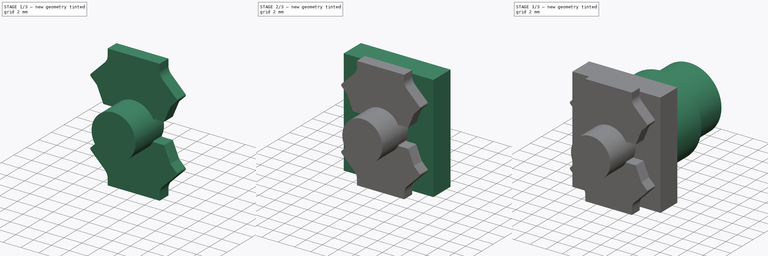
[diagram: build sequence overview — one tinted view per stage of 3, left to right]
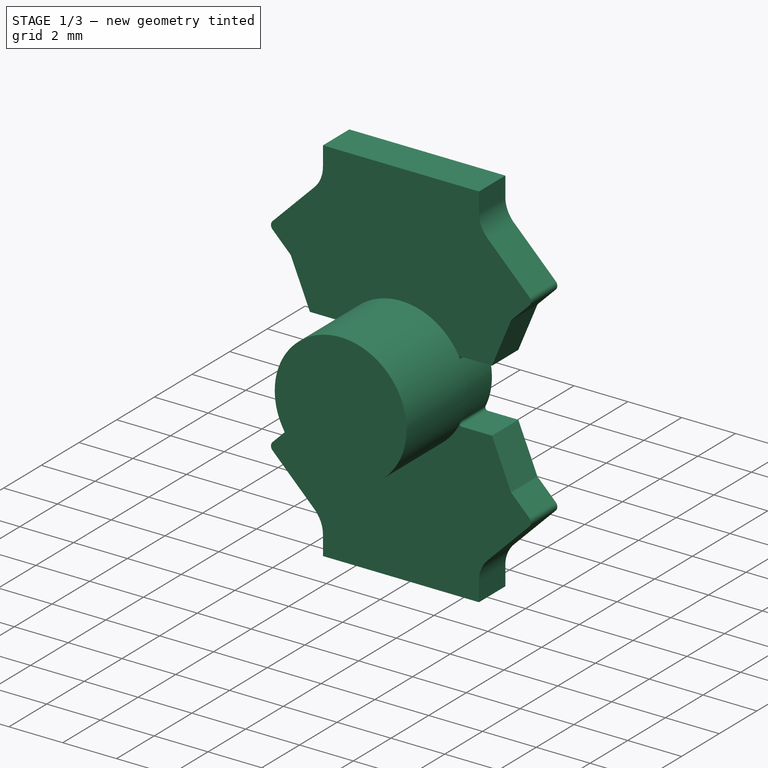
[diagram: stage 1 of 3 — iso view after this stage's code; geometry added in this stage tinted green]
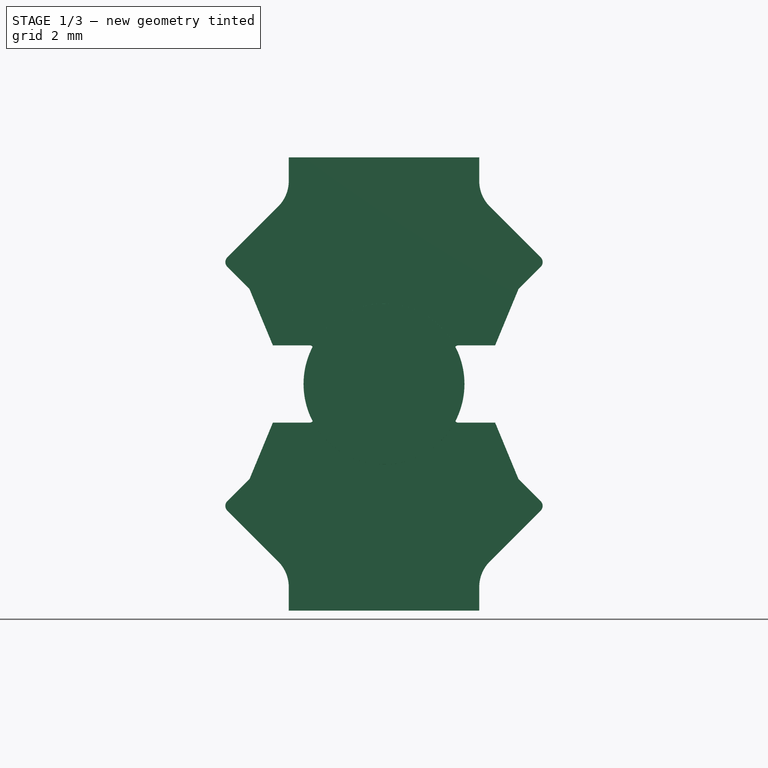
[diagram: stage 1 of 3 — front view after this stage's code; geometry added in this stage tinted green]
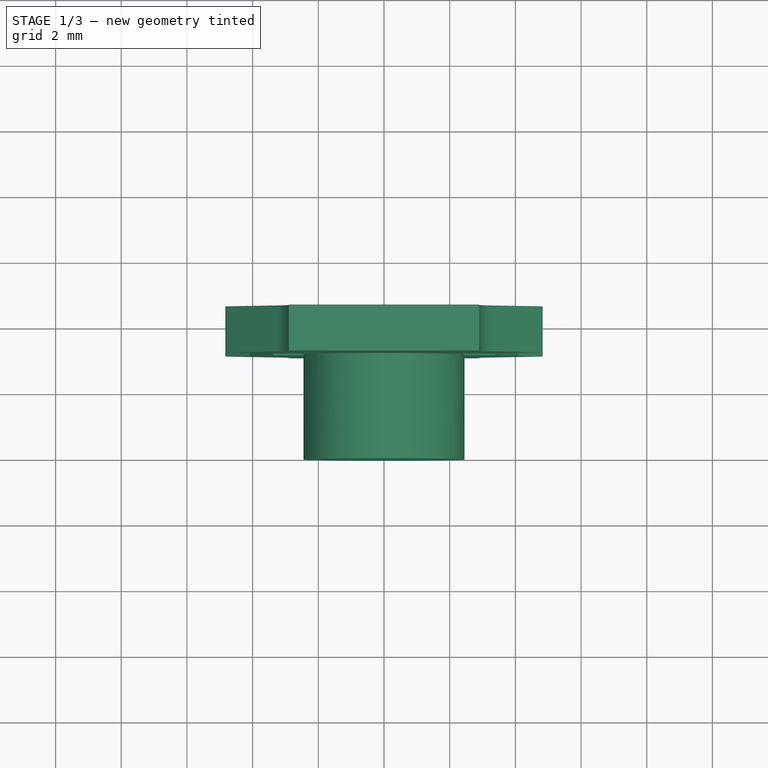
[diagram: stage 1 of 3 — top view after this stage's code; geometry added in this stage tinted green]
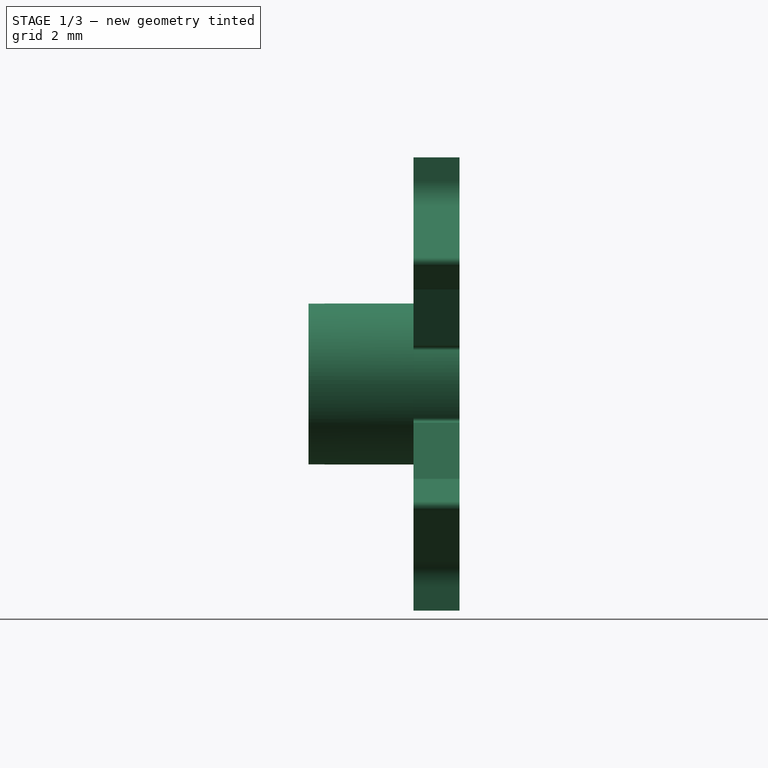
[diagram: stage 1 of 3 — right view after this stage's code; geometry added in this stage tinted green]
FCSTD DOCUMENT  (FreeCAD 1.0R39285 (Git))
Label: Coilformer_Holder
License: All rights reserved
LicenseURL: https://en.wikipedia.org/wiki/All_rights_reserved
objects: Sketcher::SketchObject×5, PartDesign::Pad×5, PartDesign::SubShapeBinder×2, Part::Feature×1, PartDesign::Body×1
note: 29 computed .brp shape members not serialized (recipe doc carries the construction recipe); baked Part::Feature solids carry a one-line shape summary decoded from their .brp

FEATURE [Part::Feature] Part__Feature  label="C61035-A0031-B201_RM5_SW0001"
  shape: bbox 19 x 8.903 x 14.25 mm, 629 faces (baked)
FEATURE [PartDesign::SubShapeBinder] Binder001
  BindCopyOnChange = 0
  BindMode = 0
  ClaimChildren = false
  Context = -> Body [Binder001.]
  Fuse = false
  MakeFace = true
  OffsetFill = false
  OffsetIntersection = false
  OffsetJoinType = 0
  OffsetOpenResult = false
  PartialLoad = false
  Refine = true
  Relative = true
  Support = -> [Part__Feature[Face131,Face295,Face443,Face181]]
  _Version = 2
FEATURE [PartDesign::SubShapeBinder] Binder002
  BindCopyOnChange = 0
  BindMode = 0
  ClaimChildren = false
  Context = -> Body [Binder002.]
  Fuse = false
  MakeFace = true
  OffsetFill = false
  OffsetIntersection = false
  OffsetJoinType = 0
  OffsetOpenResult = false
  PartialLoad = false
  Refine = true
  Relative = true
  Support = -> [Part__Feature[Face285,Face279]]
  _Version = 2
FEATURE [Sketcher::SketchObject] Sketch
  ArcFitTolerance = 1e-06
  AttachmentOffset = pos=(0,0,-4.5) rot=(0,0,1;0rad)
  AttachmentSupport = -> [XZ_Plane]
  ExternalGeometry = -> [Binder001,Binder002]
  FullyConstrained = false
  MakeInternals = false
  MapMode = 5
  Placement = pos=(0,4.5,-1e-15) rot=(1,0,0;1.5708rad)
  sketch-geometry (80):
    g0: LineSegment [constr] StartX=-3 StartY=7 StartZ=0 EndX=-3 EndY=6.18234 EndZ=0
    g1: LineSegment [constr] StartX=-3.29289 StartY=5.47523 StartZ=0 EndX=-4.84368 EndY=3.92444 EndZ=0
    g2: LineSegment [constr] StartX=-4.84368 StartY=3.50018 StartZ=0 EndX=-4.18223 EndY=2.83873 EndZ=0
    g3: LineSegment [constr] StartX=-4.17889 StartY=-2.83538 StartZ=0 EndX=-4.84368 EndY=-3.50018 EndZ=0
    g4: LineSegment [constr] StartX=-3.29289 StartY=-5.47523 StartZ=0 EndX=-4.84368 EndY=-3.92444 EndZ=0
    g5: LineSegment [constr] StartX=-3 StartY=-7 StartZ=0 EndX=-3 EndY=-6.18234 EndZ=0
    g6: LineSegment [constr] StartX=3 StartY=-7 StartZ=0 EndX=3 EndY=-6.18234 EndZ=0
    g7: LineSegment [constr] StartX=3.29289 StartY=-5.47523 StartZ=0 EndX=4.84368 EndY=-3.92444 EndZ=0
    g8: LineSegment [constr] StartX=4.84368 StartY=-3.50018 StartZ=0 EndX=4.17889 EndY=-2.83538 EndZ=0
    g9: LineSegment [constr] StartX=4.18223 StartY=2.83873 StartZ=0 EndX=4.84368 EndY=3.50018 EndZ=0
    g10: LineSegment [constr] StartX=4.84368 StartY=3.92444 StartZ=0 EndX=3.29289 EndY=5.47523 EndZ=0
    g11: LineSegment [constr] StartX=3 StartY=7 StartZ=0 EndX=3 EndY=6.18234 EndZ=0
    g12: ArcOfCircle [constr] CenterX=-4.63155 CenterY=3.71231 CenterZ=0 NormalX=0 NormalY=0 NormalZ=1 AngleXU=0 Radius=0.3 StartAngle=2.35619 EndAngle=3.92699
    g13: ArcOfCircle [constr] CenterX=-4 CenterY=6.18234 CenterZ=0 NormalX=0 NormalY=0 NormalZ=1 AngleXU=0 Radius=1 StartAngle=5.49779 EndAngle=6.28319
    g14: LineSegment [constr] StartX=-3 StartY=7 StartZ=0 EndX=3 EndY=7 EndZ=0
    g15: LineSegment [constr] StartX=-3 StartY=-7 StartZ=0 EndX=3 EndY=-7 EndZ=0
    g16: LineSegment [constr] StartX=-4.18223 StartY=2.83873 StartZ=0 EndX=-3.45 EndY=1.075 EndZ=0
    g17: LineSegment [constr] StartX=-3.45 StartY=1.075 StartZ=0 EndX=-2.72494 EndY=1.075 EndZ=0
    g18: LineSegment [constr] StartX=-3.45 StartY=-1.075 StartZ=0 EndX=-4.17889 EndY=-2.83538 EndZ=0
    g19: LineSegment [constr] StartX=-3.45 StartY=-1.075 StartZ=0 EndX=-2.72494 EndY=-1.075 EndZ=0
    g20: LineSegment [constr] StartX=4.17889 StartY=-2.83538 StartZ=0 EndX=3.45 EndY=-1.075 EndZ=0
    g21: LineSegment [constr] StartX=3.45 StartY=-1.075 StartZ=0 EndX=2.72494 EndY=-1.075 EndZ=0
    g22: LineSegment [constr] StartX=2.72494 StartY=1.075 StartZ=0 EndX=3.45 EndY=1.075 EndZ=0
    g23: LineSegment [constr] StartX=4.18223 StartY=2.83873 StartZ=0 EndX=3.45 EndY=1.075 EndZ=0
    g24: ArcOfCircle [constr] CenterX=4 CenterY=6.18234 CenterZ=0 NormalX=0 NormalY=0 NormalZ=1 AngleXU=0 Radius=1 StartAngle=3.14159 EndAngle=3.92699
    g25: ArcOfCircle [constr] CenterX=-4.63155 CenterY=-3.71231 CenterZ=0 NormalX=0 NormalY=0 NormalZ=1 AngleXU=0 Radius=0.3 StartAngle=2.35619 EndAngle=3.92699
    g26: ArcOfCircle [constr] CenterX=-4 CenterY=-6.18234 CenterZ=0 NormalX=0 NormalY=0 NormalZ=1 AngleXU=0 Radius=1 StartAngle=0 EndAngle=0.785398
    g27: ArcOfCircle [constr] CenterX=4 CenterY=-6.18234 CenterZ=0 NormalX=0 NormalY=0 NormalZ=1 AngleXU=0 Radius=1 StartAngle=2.35619 EndAngle=3.14159
    g28: ArcOfCircle [constr] CenterX=4.63155 CenterY=-3.71231 CenterZ=0 NormalX=0 NormalY=0 NormalZ=1 AngleXU=0 Radius=0.3 StartAngle=5.49779 EndAngle=7.06858
    g29: ArcOfCircle [constr] CenterX=4.63155 CenterY=3.71231 CenterZ=0 NormalX=0 NormalY=0 NormalZ=1 AngleXU=0 Radius=0.3 StartAngle=5.49779 EndAngle=7.06858
    g30: ArcOfCircle [constr] CenterX=0 CenterY=0 CenterZ=0 NormalX=0 NormalY=0 NormalZ=1 AngleXU=0 Radius=2.5 StartAngle=5.83869 EndAngle=6.72768
    g31: LineSegment [constr] StartX=-2.72494 StartY=-1.075 StartZ=0 EndX=-2.25707 EndY=-1.075 EndZ=0
    g32: LineSegment [constr] StartX=-2.72494 StartY=1.075 StartZ=0 EndX=-2.25707 EndY=1.075 EndZ=0
    g33: LineSegment [constr] StartX=2.72494 StartY=1.075 StartZ=0 EndX=2.25707 EndY=1.075 EndZ=0
    g34: LineSegment [constr] StartX=2.72494 StartY=-1.075 StartZ=0 EndX=2.25707 EndY=-1.075 EndZ=0
    g35: ArcOfCircle [constr] CenterX=0 CenterY=0 CenterZ=0 NormalX=0 NormalY=0 NormalZ=1 AngleXU=0 Radius=2.5 StartAngle=2.6971 EndAngle=3.58609
    g36: ArcOfCircle CenterX=0 CenterY=0 CenterZ=0 NormalX=0 NormalY=0 NormalZ=1 AngleXU=0 Radius=2.4 StartAngle=2.6971 EndAngle=3.58609
    g37: ArcOfCircle CenterX=-2.25707 CenterY=-1.075 CenterZ=0 NormalX=0 NormalY=0 NormalZ=-1 AngleXU=1.1263 Radius=0.1 StartAngle=1.5708 EndAngle=3.58609
    g38: LineSegment StartX=-2.72494 StartY=-1.175 StartZ=0 EndX=-2.25707 EndY=-1.175 EndZ=0
    g39: LineSegment StartX=-3.38317 StartY=-1.175 StartZ=0 EndX=-2.72494 EndY=-1.175 EndZ=0
    g40: LineSegment StartX=-3.38317 StartY=-1.175 StartZ=0 EndX=-4.0865 EndY=-2.87364 EndZ=0
    g41: ArcOfCircle CenterX=-4.17889 CenterY=-2.83538 CenterZ=0 NormalX=0 NormalY=0 NormalZ=-1 AngleXU=1.96336 Radius=0.1 StartAngle=1.5708 EndAngle=1.96363
    g42: LineSegment StartX=-4.10818 StartY=-2.90609 StartZ=0 EndX=-4.77297 EndY=-3.57089 EndZ=0
    g43: ArcOfCircle CenterX=-4.63155 CenterY=-3.71231 CenterZ=0 NormalX=0 NormalY=0 NormalZ=1 AngleXU=0 Radius=0.2 StartAngle=2.35619 EndAngle=3.92699
    g44: LineSegment StartX=-3.22218 StartY=-5.40452 StartZ=0 EndX=-4.77297 EndY=-3.85373 EndZ=0
    g45: ArcOfCircle CenterX=-4 CenterY=-6.18234 CenterZ=0 NormalX=0 NormalY=0 NormalZ=1 AngleXU=0 Radius=1.1 StartAngle=0 EndAngle=0.785398
    g46: LineSegment StartX=-2.9 StartY=-6.9 StartZ=0 EndX=-2.9 EndY=-6.18234 EndZ=0
    g47: LineSegment StartX=-2.9 StartY=-6.9 StartZ=0 EndX=2.9 EndY=-6.9 EndZ=0
    g48: LineSegment StartX=2.9 StartY=-6.9 StartZ=0 EndX=2.9 EndY=-6.18234 EndZ=0
    g49: ArcOfCircle CenterX=4 CenterY=-6.18234 CenterZ=0 NormalX=0 NormalY=0 NormalZ=1 AngleXU=0 Radius=1.1 StartAngle=2.35619 EndAngle=3.14159
    g50: LineSegment StartX=3.22218 StartY=-5.40452 StartZ=0 EndX=4.77297 EndY=-3.85373 EndZ=0
    g51: ArcOfCircle CenterX=4.63155 CenterY=-3.71231 CenterZ=0 NormalX=0 NormalY=0 NormalZ=1 AngleXU=0 Radius=0.2 StartAngle=5.49779 EndAngle=7.06858
    g52: LineSegment StartX=4.77297 StartY=-3.57089 StartZ=0 EndX=4.10818 EndY=-2.90609 EndZ=0
    g53: ArcOfCircle CenterX=4.17889 CenterY=-2.83538 CenterZ=0 NormalX=0 NormalY=0 NormalZ=-1 AngleXU=-2.35619 Radius=0.1 StartAngle=1.5708 EndAngle=1.96363
    g54: LineSegment StartX=4.0865 StartY=-2.87364 StartZ=0 EndX=3.38317 EndY=-1.175 EndZ=0
    g55: LineSegment StartX=3.38317 StartY=-1.175 StartZ=0 EndX=2.72494 EndY=-1.175 EndZ=0
    g56: LineSegment StartX=2.72494 StartY=-1.175 StartZ=0 EndX=2.25707 EndY=-1.175 EndZ=0
    g57: ArcOfCircle CenterX=2.25707 CenterY=-1.075 CenterZ=0 NormalX=0 NormalY=0 NormalZ=-1 AngleXU=-3.14159 Radius=0.1 StartAngle=1.5708 EndAngle=3.58609
    g58: ArcOfCircle CenterX=0 CenterY=0 CenterZ=0 NormalX=0 NormalY=0 NormalZ=1 AngleXU=0 Radius=2.4 StartAngle=5.83869 EndAngle=6.72768
    g59: ArcOfCircle CenterX=2.25707 CenterY=1.075 CenterZ=0 NormalX=0 NormalY=0 NormalZ=-1 AngleXU=-2.01529 Radius=0.1 StartAngle=1.5708 EndAngle=3.58609
    g60: LineSegment StartX=2.72494 StartY=1.175 StartZ=0 EndX=2.25707 EndY=1.175 EndZ=0
    g61: LineSegment StartX=2.72494 StartY=1.175 StartZ=0 EndX=3.38324 EndY=1.175 EndZ=0
    g62: LineSegment StartX=4.08988 StartY=2.87707 StartZ=0 EndX=3.38324 EndY=1.175 EndZ=0
    g63: ArcOfCircle CenterX=4.18223 CenterY=2.83873 CenterZ=0 NormalX=0 NormalY=0 NormalZ=-1 AngleXU=-1.17729 Radius=0.1 StartAngle=1.5708 EndAngle=1.96269
    g64: LineSegment StartX=4.11152 StartY=2.90944 StartZ=0 EndX=4.77297 EndY=3.57089 EndZ=0
    g65: ArcOfCircle CenterX=4.63155 CenterY=3.71231 CenterZ=0 NormalX=0 NormalY=0 NormalZ=1 AngleXU=0 Radius=0.2 StartAngle=5.49779 EndAngle=7.06858
    g66: LineSegment StartX=4.77297 StartY=3.85373 StartZ=0 EndX=3.22218 EndY=5.40452 EndZ=0
    g67: ArcOfCircle CenterX=4 CenterY=6.18234 CenterZ=0 NormalX=0 NormalY=0 NormalZ=1 AngleXU=0 Radius=1.1 StartAngle=3.14159 EndAngle=3.92699
    g68: LineSegment StartX=2.9 StartY=6.9 StartZ=0 EndX=2.9 EndY=6.18234 EndZ=0
    g69: LineSegment StartX=-2.9 StartY=6.9 StartZ=0 EndX=2.9 EndY=6.9 EndZ=0
    g70: LineSegment StartX=-2.9 StartY=6.9 StartZ=0 EndX=-2.9 EndY=6.18234 EndZ=0
    g71: ArcOfCircle CenterX=-4 CenterY=6.18234 CenterZ=0 NormalX=0 NormalY=0 NormalZ=1 AngleXU=0 Radius=1.1 StartAngle=5.49779 EndAngle=6.28319
    g72: LineSegment StartX=-3.22218 StartY=5.40452 StartZ=0 EndX=-4.77297 EndY=3.85373 EndZ=0
    g73: ArcOfCircle CenterX=-4.63155 CenterY=3.71231 CenterZ=0 NormalX=0 NormalY=0 NormalZ=1 AngleXU=0 Radius=0.2 StartAngle=2.35619 EndAngle=3.92699
    g74: LineSegment StartX=-4.77297 StartY=3.57089 StartZ=0 EndX=-4.11152 EndY=2.90944 EndZ=0
    g75: ArcOfCircle CenterX=-4.18223 CenterY=2.83873 CenterZ=0 NormalX=0 NormalY=0 NormalZ=-1 AngleXU=0.785398 Radius=0.1 StartAngle=1.5708 EndAngle=1.96269
    g76: LineSegment StartX=-4.08988 StartY=2.87707 StartZ=0 EndX=-3.38324 EndY=1.175 EndZ=0
    g77: LineSegment StartX=-3.38324 StartY=1.175 StartZ=0 EndX=-2.72494 EndY=1.175 EndZ=0
    g78: LineSegment StartX=-2.72494 StartY=1.175 StartZ=0 EndX=-2.25707 EndY=1.175 EndZ=0
    g79: ArcOfCircle CenterX=-2.25707 CenterY=1.075 CenterZ=0 NormalX=0 NormalY=0 NormalZ=-1 AngleXU=0 Radius=0.1 StartAngle=1.5708 EndAngle=3.58609
  constraints (129):
    c: Coincident(g1,g-5)
    c: Coincident(g1,g-6)
    c: Coincident(g2,g-7)
    c: Coincident(g2,g-7)
    c: Coincident(g3,g-9)
    c: Coincident(g3,g-11)
    c: Coincident(g4,g-13)
    c: Coincident(g4,g-12)
    c: Tangent(g5,g-14) = -1.5708
    c: Coincident(g5,g-14)
    c: Coincident(g6,g-15)
    c: Coincident(g6,g-16)
    c: Coincident(g7,g-17)
    c: Coincident(g7,g-18)
    c: Coincident(g8,g-19)
    c: Coincident(g8,g-20)
    c: Coincident(g9,g-22)
    c: Coincident(g9,g-23)
    c: Coincident(g10,g-24)
    c: Coincident(g10,g-25)
    c: Coincident(g12,g2)
    c: Coincident(g12,g1)
    c: Equal(g-6,g12)
    c: Coincident(g13,g0)
    c: Coincident(g13,g1)
    c: Coincident(g0,g-4)
    c: Equal(g13,g-4)
    c: Coincident(g0,g-3)
    c: Coincident(g14,g0)
    c: Coincident(g14,g11)
    c: Coincident(g11,g-26)
    c: Coincident(g11,g-26)
    c: Coincident(g15,g5)
    c: Coincident(g15,g6)
    c: Coincident(g16,g2)
    c: Coincident(g16,g-27)
    c: Coincident(g17,g16)
    c: Coincident(g17,g-27)
    c: Coincident(g18,g-28)
    c: Coincident(g18,g3)
    c: Coincident(g19,g18)
    c: Coincident(g19,g-28)
    c: Coincident(g20,g8)
    c: Coincident(g20,g-29)
    c: Coincident(g21,g20)
    c: Coincident(g21,g-29)
    c: Coincident(g22,g-30)
    c: Coincident(g22,g-30)
    c: Coincident(g23,g9)
    c: Coincident(g23,g22)
    c: Coincident(g24,g11)
    c: Coincident(g24,g10)
    c: Coincident(g25,g3)
    c: Coincident(g25,g4)
    c: Coincident(g26,g4)
    c: Coincident(g26,g5)
    c: Coincident(g27,g6)
    c: Coincident(g27,g7)
    c: Coincident(g28,g8)
    c: Coincident(g28,g7)
    c: Coincident(g29,g10)
    c: Coincident(g29,g9)
    c: Equal(g-23,g29)
    c: Equal(g-18,g28)
    c: Equal(g-16,g27)
    c: Equal(g-13,g26)
    c: Equal(g25,g-11)
    c: Equal(g24,g-25)
    c: Coincident(g30,g-1)
    c: Coincident(g31,g19)
    c: Horizontal(g31)
    c: Coincident(g32,g17)
    c: PointOnObject(g32,g35)
    c: Coincident(g33,g22)
    c: Horizontal(g33)
    c: Coincident(g34,g21)
    c: Horizontal(g34)
    c: Diameter(g30) = 5
    c: Horizontal(g32)
    c: Coincident(g35,g31)
    c: Coincident(g30,g34)
    c: Equal(g30,g35)
    c: Coincident(g30,g33)
    c: PointOnObject(g35,g32)
    c: Coincident(g30,g35)
    c: Tangent(g36,g37) = 1.5708
    c: Tangent(g36,g79) = 1.5708
    c: Tangent(g37,g38) = -1.5708
    c: Coincident(g38,g39)
    c: Coincident(g39,g40)
    c: Tangent(g40,g41) = 1.5708
    c: Tangent(g41,g42) = 1.5708
    c: Tangent(g43,g44) = 1.5708
    c: Tangent(g44,g45) = -1.5708
    c: Tangent(g45,g46) = -1.5708
    c: Coincident(g46,g47)
    c: Coincident(g47,g48)
    c: Tangent(g48,g49) = 1.5708
    c: Tangent(g49,g50) = 1.5708
    c: Tangent(g50,g51) = -1.5708
    c: Tangent(g52,g53) = 1.5708
    c: Tangent(g53,g54) = 1.5708
    c: Coincident(g54,g55)
    c: Coincident(g55,g56)
    c: Tangent(g56,g57) = 1.5708
    c: Tangent(g57,g58) = 1.5708
    c: Tangent(g58,g59) = 1.5708
    c: Tangent(g59,g60) = -1.5708
    c: Coincident(g60,g61)
    c: Coincident(g61,g62)
    c: Tangent(g62,g63) = -1.5708
    c: Tangent(g63,g64) = 1.5708
    c: Tangent(g64,g65) = -1.5708
    c: Tangent(g65,g66) = -1.5708
    c: Tangent(g66,g67) = 1.5708
    c: Tangent(g67,g68) = -1.5708
    c: Coincident(g68,g69)
    c: Coincident(g69,g70)
    c: Tangent(g70,g71) = 1.5708
    c: Tangent(g71,g72) = 1.5708
    c: Tangent(g72,g73) = -1.5708
    c: Tangent(g73,g74) = -1.5708
    c: Tangent(g74,g75) = 1.5708
    c: Tangent(g75,g76) = 1.5708
    c: Coincident(g76,g77)
    c: Coincident(g77,g78)
    c: Tangent(g78,g79) = 1.5708
    c: Coincident(g42,g43)
    c: Coincident(g51,g52)
FEATURE [PartDesign::Pad] Pad
  Direction = (0,-1,2e-16)
  Length = 1.4
  Length2 = 10
  Placement = pos=(0,0,0) rot=(1,0,0;1.5708rad)
  Profile = -> Sketch
  ReferenceAxis = -> Sketch [N_Axis]
  Refine = true
  Suppressed = false
  Type = 0
FEATURE [Sketcher::SketchObject] Sketch001
  ArcFitTolerance = 1e-06
  AttachmentOffset = pos=(0,0,-3.1) rot=(0,0,1;0rad)
  AttachmentSupport = -> [XZ_Plane]
  FullyConstrained = true
  MakeInternals = false
  MapMode = 5
  Placement = pos=(0,3.1,-7e-16) rot=(1,0,0;1.5708rad)
  sketch-geometry (1):
    g0: Circle CenterX=0 CenterY=0 CenterZ=0 NormalX=0 NormalY=0 NormalZ=1 AngleXU=0 Radius=2.45
  constraints (2):
    c: Coincident(g0,g-1)
    c: Diameter(g0) = 4.9
FEATURE [PartDesign::Pad] Pad001
  BaseFeature = -> Pad
  Direction = (0,-1,2e-16)
  Length = 3.2
  Length2 = 10
  Placement = pos=(0,0,0) rot=(1,0,0;1.5708rad)
  Profile = -> Sketch001
  ReferenceAxis = -> Sketch001 [N_Axis]
  Refine = true
  Suppressed = false
  Type = 0
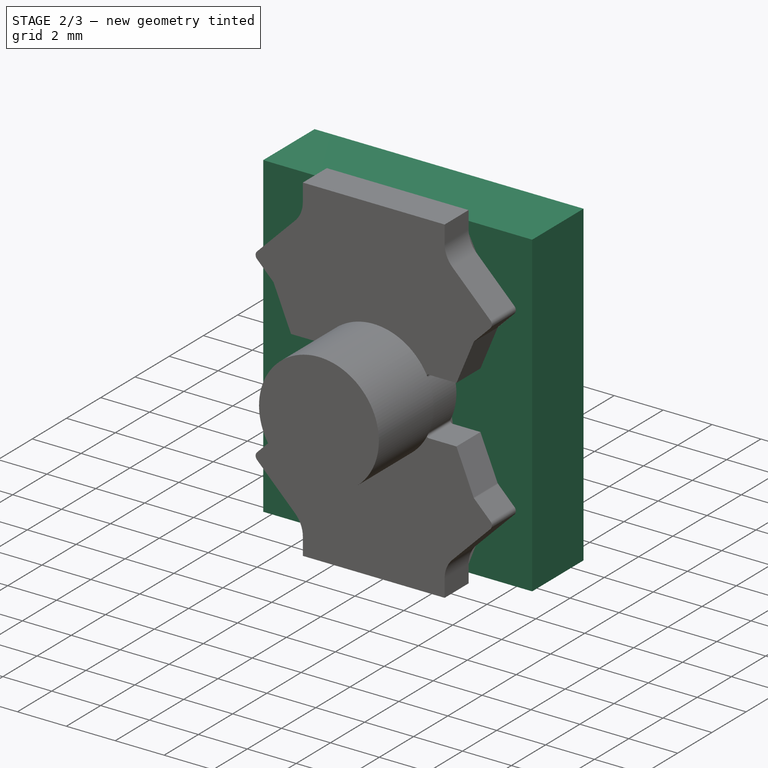
[diagram: stage 2 of 3 — iso view after this stage's code; geometry added in this stage tinted green]
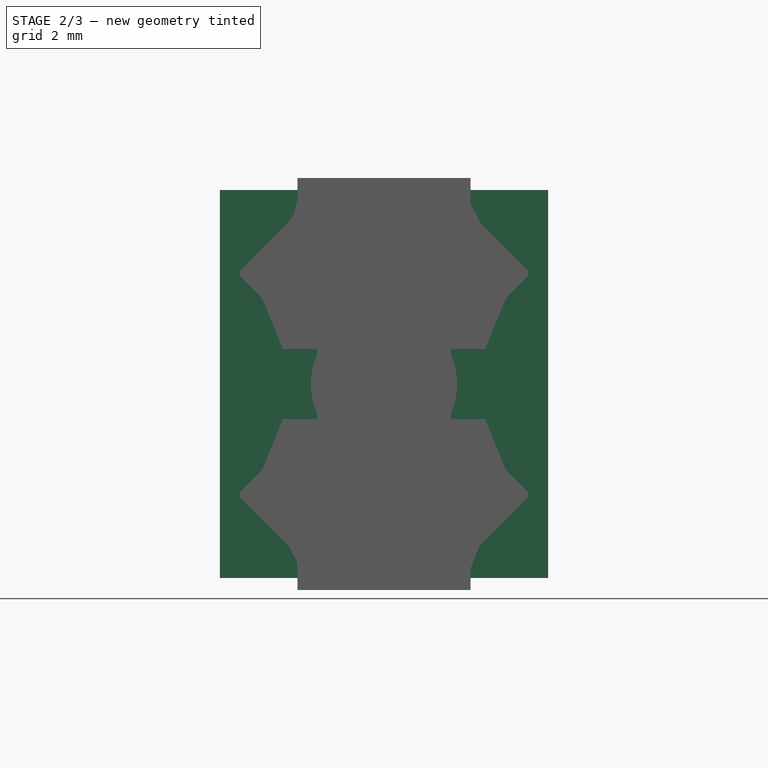
[diagram: stage 2 of 3 — front view after this stage's code; geometry added in this stage tinted green]
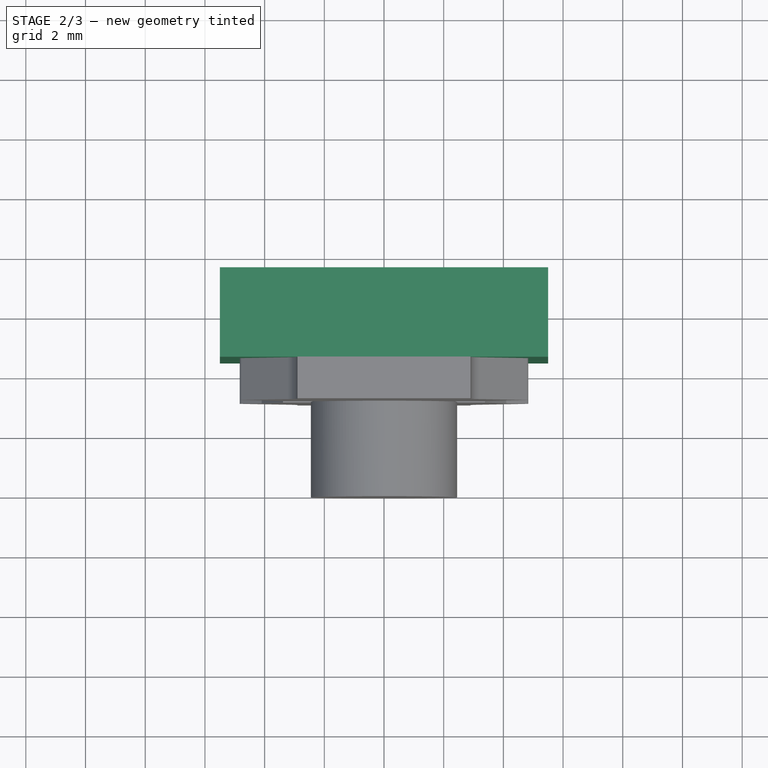
[diagram: stage 2 of 3 — top view after this stage's code; geometry added in this stage tinted green]
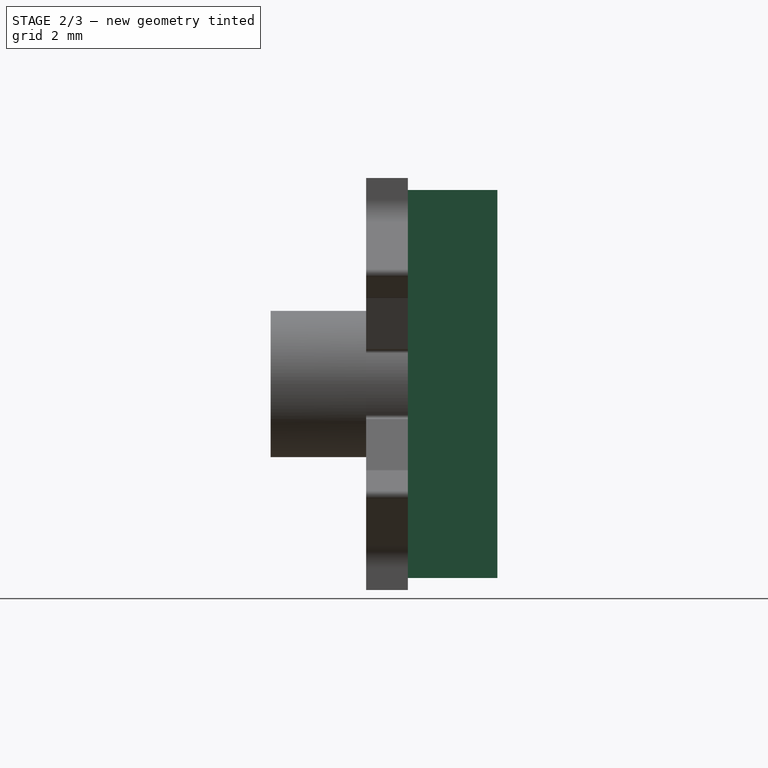
[diagram: stage 2 of 3 — right view after this stage's code; geometry added in this stage tinted green]
FEATURE [Sketcher::SketchObject] Sketch002
  ArcFitTolerance = 1e-06
  AttachmentSupport = -> [Pad001]
  FullyConstrained = true
  MakeInternals = false
  MapMode = 5
  Placement = pos=(0,4.5,-1.1e-15) rot=(-1,0,0;1.5708rad)
  sketch-geometry (5):
    g0: LineSegment StartX=-5.5 StartY=6.5 StartZ=0 EndX=-5.5 EndY=-6.5 EndZ=0
    g1: LineSegment StartX=-5.5 StartY=-6.5 StartZ=0 EndX=5.5 EndY=-6.5 EndZ=0
    g2: LineSegment StartX=5.5 StartY=-6.5 StartZ=0 EndX=5.5 EndY=6.5 EndZ=0
    g3: LineSegment StartX=5.5 StartY=6.5 StartZ=0 EndX=-5.5 EndY=6.5 EndZ=0
    g4: GeomPoint [constr] X=0 Y=0 Z=0
  constraints (12):
    c: Coincident(g0,g1)
    c: Coincident(g1,g2)
    c: Coincident(g2,g3)
    c: Coincident(g3,g0)
    c: Vertical(g0)
    c: Vertical(g2)
    c: Horizontal(g1)
    c: Horizontal(g3)
    c: Symmetric(g2,g0,g4)
    c: Coincident(g4,g-1)
    c: DistanceY(g0,g0) = 13
    c: DistanceX(g3,g3) = 11
FEATURE [PartDesign::Pad] Pad002
  BaseFeature = -> Pad001
  Direction = (0,1,2e-16)
  Length = 3
  Length2 = 10
  Placement = pos=(0,0,0) rot=(1,0,0;1.5708rad)
  Profile = -> Sketch002
  ReferenceAxis = -> Sketch002 [N_Axis]
  Refine = true
  Suppressed = false
  Type = 0
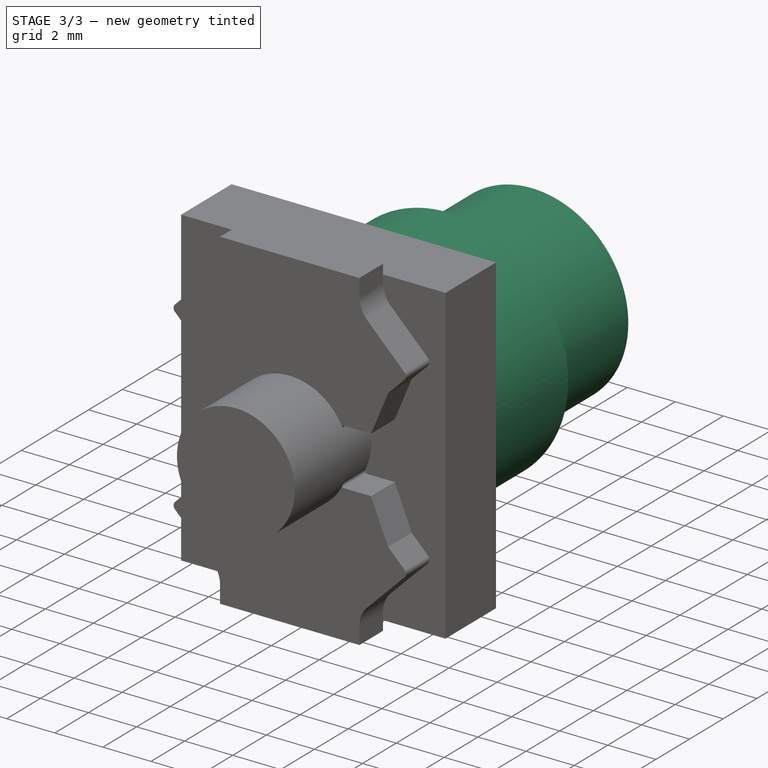
[diagram: stage 3 of 3 — iso view after this stage's code; geometry added in this stage tinted green]
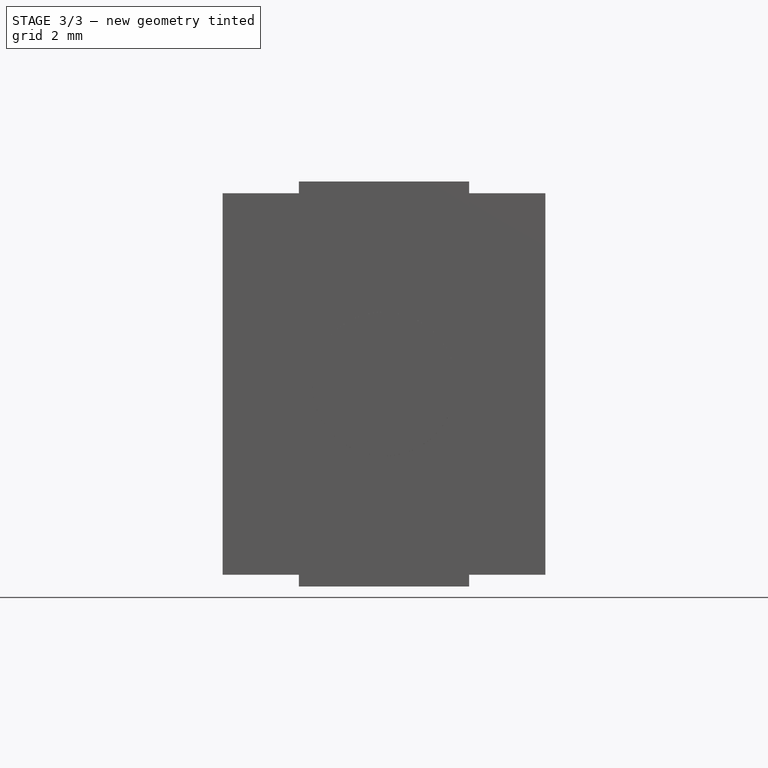
[diagram: stage 3 of 3 — front view after this stage's code; geometry added in this stage tinted green]
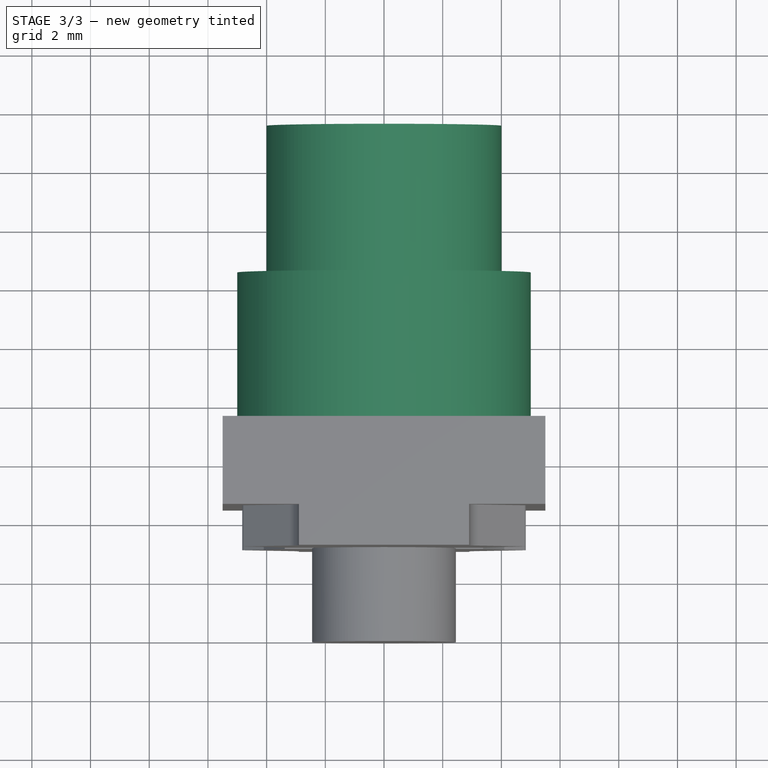
[diagram: stage 3 of 3 — top view after this stage's code; geometry added in this stage tinted green]
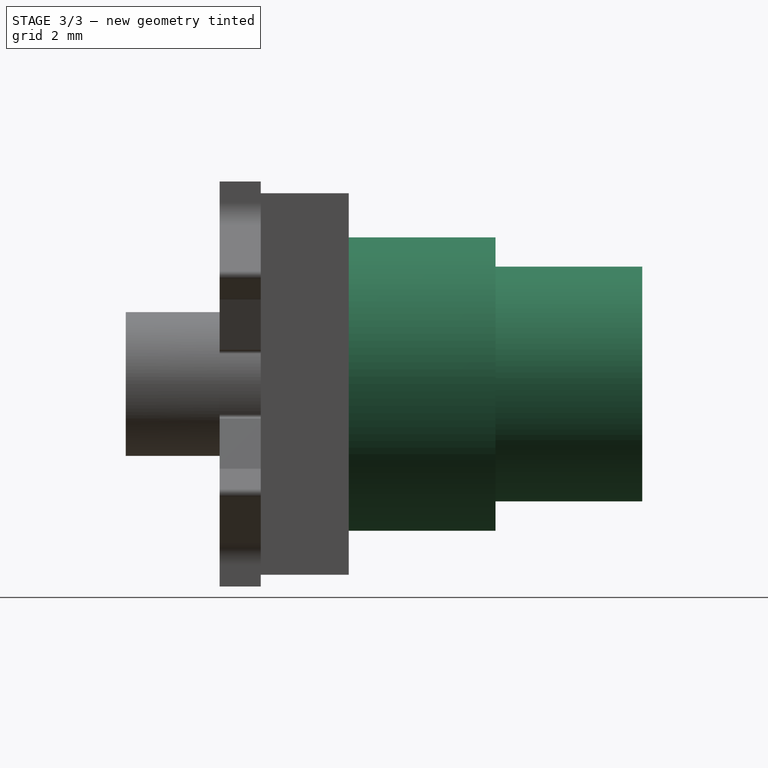
[diagram: stage 3 of 3 — right view after this stage's code; geometry added in this stage tinted green]
FEATURE [Sketcher::SketchObject] Sketch003
  ArcFitTolerance = 1e-06
  AttachmentSupport = -> [Pad002]
  FullyConstrained = true
  MakeInternals = false
  MapMode = 5
  Placement = pos=(0,7.5,2e-15) rot=(-1,0,0;1.5708rad)
  sketch-geometry (1):
    g0: Circle CenterX=0 CenterY=0 CenterZ=0 NormalX=0 NormalY=0 NormalZ=1 AngleXU=0 Radius=4
  constraints (2):
    c: Coincident(g0,g-1)
    c: Diameter(g0) = 8
FEATURE [PartDesign::Pad] Pad003
  BaseFeature = -> Pad002
  Direction = (0,1,2e-16)
  Length = 10
  Length2 = 10
  Placement = pos=(0,0,0) rot=(1,0,0;1.5708rad)
  Profile = -> Sketch003
  ReferenceAxis = -> Sketch003 [N_Axis]
  Refine = true
  Suppressed = false
  Type = 0
FEATURE [Sketcher::SketchObject] Sketch004
  ArcFitTolerance = 1e-06
  AttachmentSupport = -> [Pad003]
  FullyConstrained = true
  MakeInternals = false
  MapMode = 5
  Placement = pos=(0,7.5,2e-15) rot=(-1,0,0;1.5708rad)
  sketch-geometry (1):
    g0: Circle CenterX=0 CenterY=0 CenterZ=0 NormalX=0 NormalY=0 NormalZ=1 AngleXU=0 Radius=5
  constraints (2):
    c: Coincident(g0,g-1)
    c: Diameter(g0) = 10
FEATURE [PartDesign::Pad] Pad004
  BaseFeature = -> Pad003
  Direction = (0,1,2e-16)
  Length = 5
  Length2 = 10
  Placement = pos=(0,0,0) rot=(1,0,0;1.5708rad)
  Profile = -> Sketch004
  ReferenceAxis = -> Sketch004 [N_Axis]
  Refine = true
  Suppressed = false
  Type = 0
FEATURE [PartDesign::Body] Body  label="Körper"
  AllowCompound = false
  Group = -> [Binder001,Binder002,Sketch,Pad,Sketch001,Pad001,Sketch002,Pad002,Sketch003,Pad003,Sketch004,Pad004]
  Origin = -> Origin
  Tip = -> Pad004
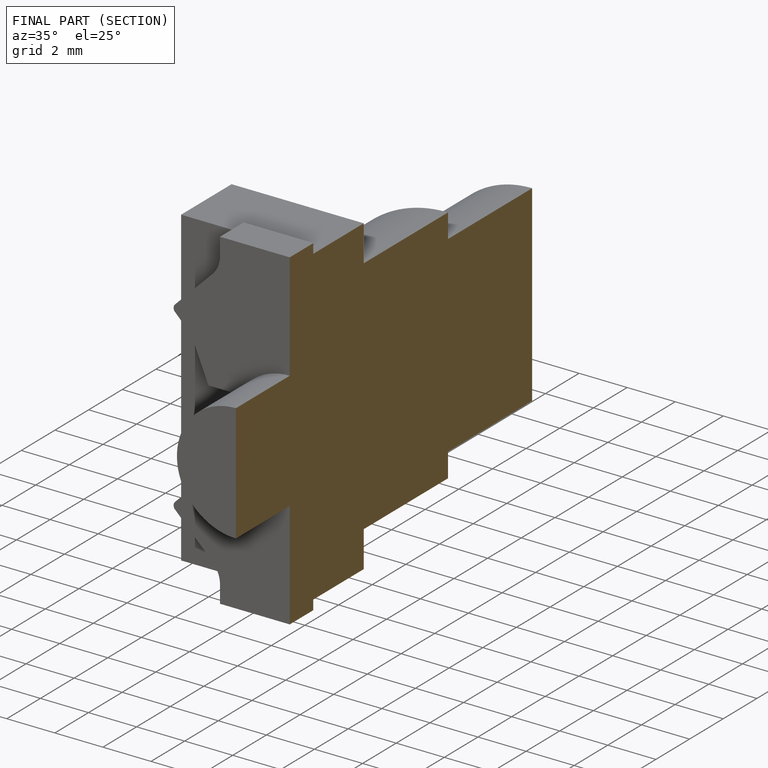
[diagram: finished part — half-section view (interior)]
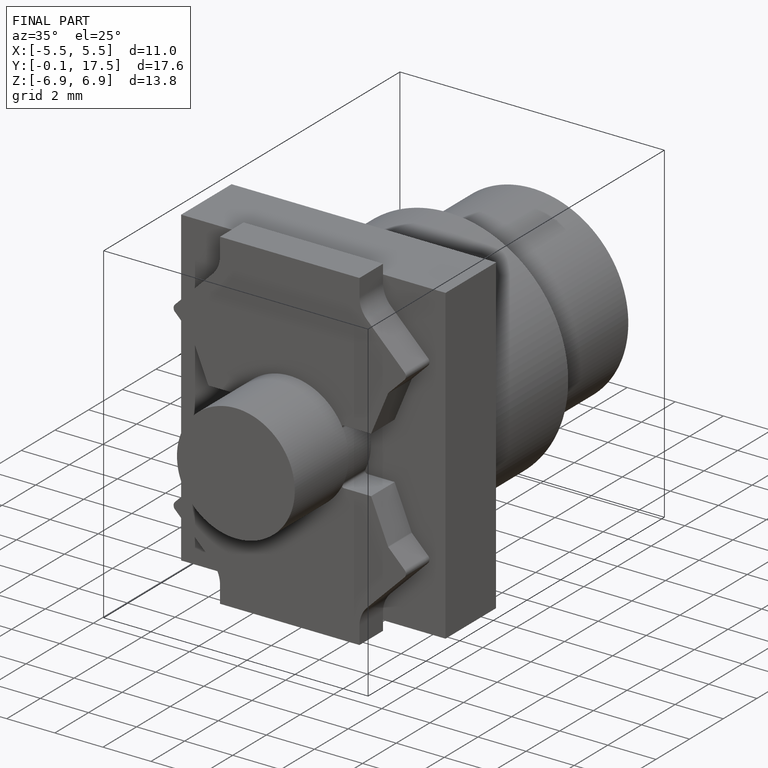
[diagram: finished part — iso view with bounding-box wireframe]
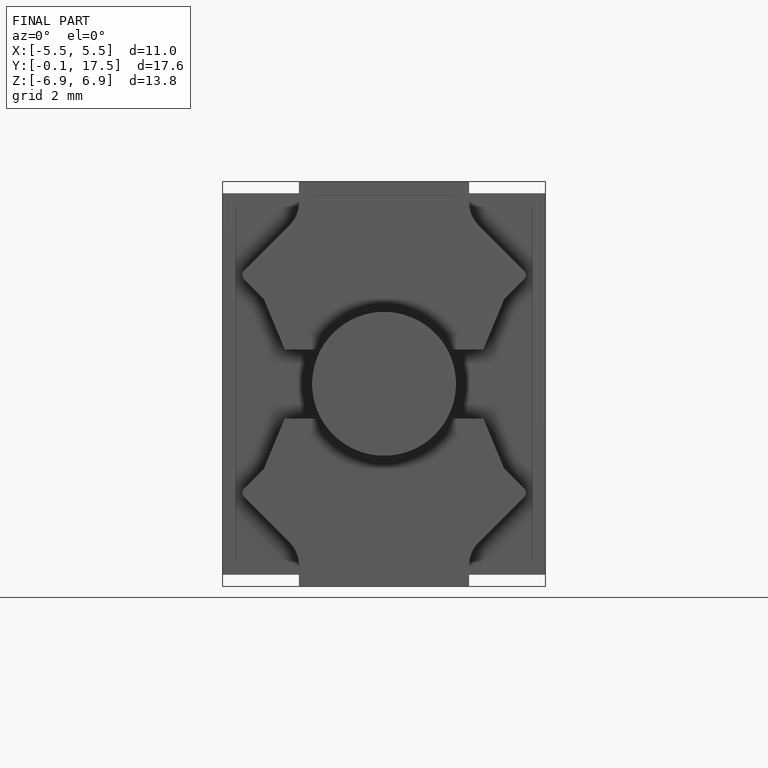
[diagram: finished part — front view with bounding-box wireframe]
